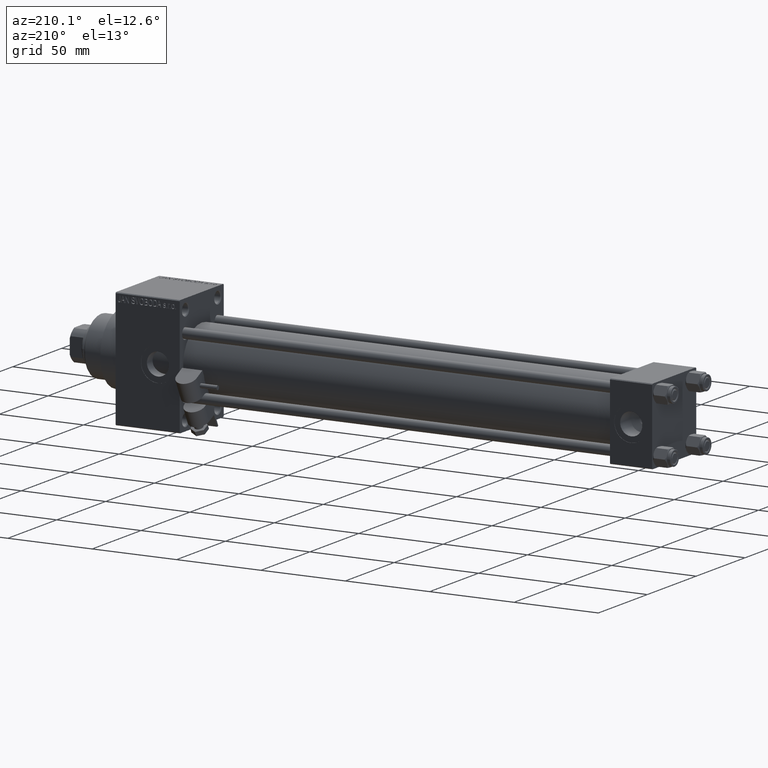
[diagram: clean part render]
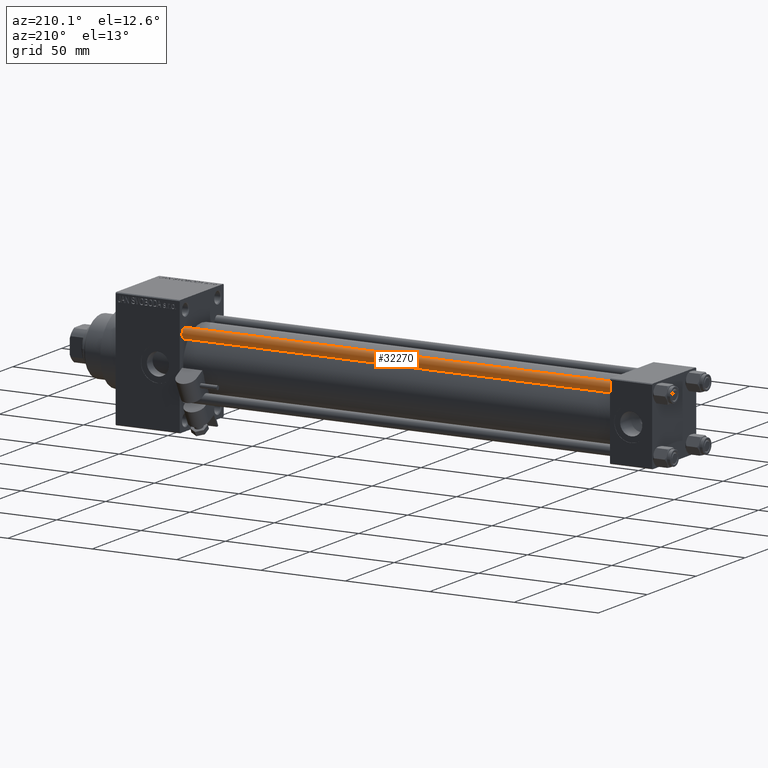
[diagram: same view with one face highlighted and labeled with its STEP entity id]
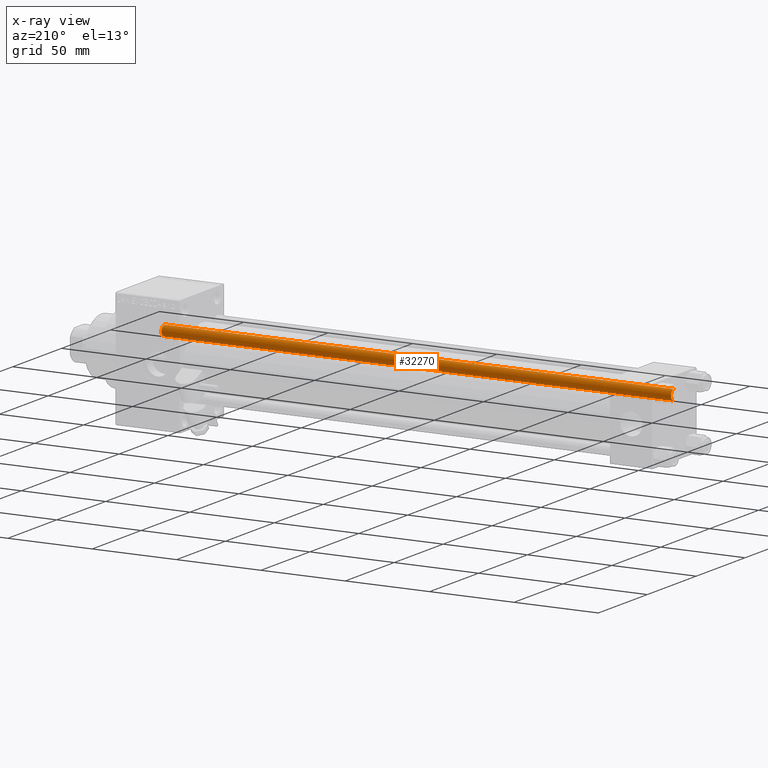
[diagram: x-ray of the same camera — body ghosted, the highlighted face saturated]
A machine part, auxiliary view. The second image highlights one B-rep face of the part: STEP entity #32270.
The next image is the same camera in x-ray: the body ghosted, the highlighted face saturated — about 0% of this face is hidden behind the body in this view.
In plain terms, the highlighted cylindrical surface (edge-blend (fillet) strip) has radius 3 mm, axis along (-1, -0, 0).
Its self-contained STEP definition (entity closure, byte-faithful):
#915 = CARTESIAN_POINT ( 'NONE',  ( -3.000000000000000444, 0.000000000000000000, 302.5000000000000000 ) ) ;
#1942 = DIRECTION ( 'NONE',  ( 0.000000000000000000, 0.000000000000000000, -1.000000000000000000 ) ) ;
#4068 = CARTESIAN_POINT ( 'NONE',  ( 0.000000000000000000, 0.000000000000000000, 303.0000000000000000 ) ) ;
#7773 = VECTOR ( 'NONE', #8109, 1000.000000000000000 ) ;
#8109 = DIRECTION ( 'NONE',  ( -0.000000000000000000, -0.000000000000000000, -1.000000000000000000 ) ) ;
#12320 = CIRCLE ( 'NONE', #47092, 3.000000000000000444 ) ;
#12408 = CARTESIAN_POINT ( 'NONE',  ( -3.000000000000000444, 0.000000000000000000, 303.0000000000000000 ) ) ;
#13133 = EDGE_CURVE ( 'NONE', #36580, #24663, #12320, .T. ) ;
#13471 = EDGE_LOOP ( 'NONE', ( #42497, #17888, #14067, #43324 ) ) ;
#14067 = ORIENTED_EDGE ( 'NONE', *, *, #13133, .T. ) ;
#16452 = EDGE_CURVE ( 'NONE', #30419, #19547, #18935, .T. ) ;
#17154 = CARTESIAN_POINT ( 'NONE',  ( 0.000000000000000000, 0.000000000000000000, 302.5000000000000000 ) ) ;
#17334 = AXIS2_PLACEMENT_3D ( 'NONE', #17154, #1942, #44230 ) ;
#17888 = ORIENTED_EDGE ( 'NONE', *, *, #30401, .T. ) ;
#18935 = CIRCLE ( 'NONE', #17334, 3.000000000000000444 ) ;
#19283 = CYLINDRICAL_SURFACE ( 'NONE', #38760, 3.000000000000000444 ) ;
#19547 = VERTEX_POINT ( 'NONE', #27779 ) ;
#21547 = EDGE_CURVE ( 'NONE', #30419, #24663, #28327, .T. ) ;
#23342 = VECTOR ( 'NONE', #47518, 1000.000000000000000 ) ;
#23630 = CARTESIAN_POINT ( 'NONE',  ( 3.000000000000000444, 3.673940397442060361E-16, 0.5000000000001114664 ) ) ;
#24663 = VERTEX_POINT ( 'NONE', #44357 ) ;
#27779 = CARTESIAN_POINT ( 'NONE',  ( 3.000000000000000444, 3.673940397442060361E-16, 302.5000000000000000 ) ) ;
#28327 = LINE ( 'NONE', #12408, #7773 ) ;
#28941 = CARTESIAN_POINT ( 'NONE',  ( 3.000000000000000444, 3.673940397442060361E-16, 303.0000000000000000 ) ) ;
#30159 = DIRECTION ( 'NONE',  ( -0.000000000000000000, -0.000000000000000000, 1.000000000000000000 ) ) ;
#30164 = FACE_OUTER_BOUND ( 'NONE', #13471, .T. ) ;
#30401 = EDGE_CURVE ( 'NONE', #19547, #36580, #38908, .T. ) ;
#30419 = VERTEX_POINT ( 'NONE', #915 ) ;
#30915 = DIRECTION ( 'NONE',  ( -1.000000000000000000, 0.000000000000000000, 0.000000000000000000 ) ) ;
#32270 = ADVANCED_FACE ( 'NONE', ( #30164 ), #19283, .T. ) ;
#34201 = DIRECTION ( 'NONE',  ( 1.000000000000000000, 0.000000000000000000, 0.000000000000000000 ) ) ;
#36580 = VERTEX_POINT ( 'NONE', #23630 ) ;
#38760 = AXIS2_PLACEMENT_3D ( 'NONE', #4068, #49424, #30915 ) ;
#38908 = LINE ( 'NONE', #28941, #23342 ) ;
#42311 = CARTESIAN_POINT ( 'NONE',  ( 0.000000000000000000, 0.000000000000000000, 0.5000000000001114664 ) ) ;
#42497 = ORIENTED_EDGE ( 'NONE', *, *, #16452, .T. ) ;
#43324 = ORIENTED_EDGE ( 'NONE', *, *, #21547, .F. ) ;
#44230 = DIRECTION ( 'NONE',  ( 1.000000000000000000, 0.000000000000000000, 0.000000000000000000 ) ) ;
#44357 = CARTESIAN_POINT ( 'NONE',  ( -3.000000000000000444, 0.000000000000000000, 0.5000000000001114664 ) ) ;
#47092 = AXIS2_PLACEMENT_3D ( 'NONE', #42311, #30159, #34201 ) ;
#47518 = DIRECTION ( 'NONE',  ( -0.000000000000000000, -0.000000000000000000, -1.000000000000000000 ) ) ;
#49424 = DIRECTION ( 'NONE',  ( -0.000000000000000000, -0.000000000000000000, -1.000000000000000000 ) ) ;